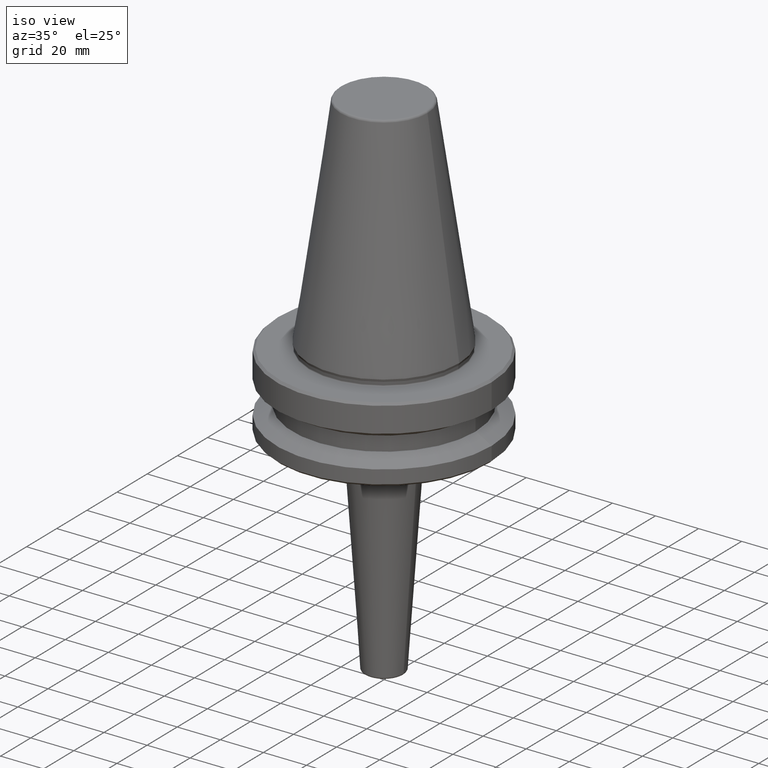
[diagram: clean part render]
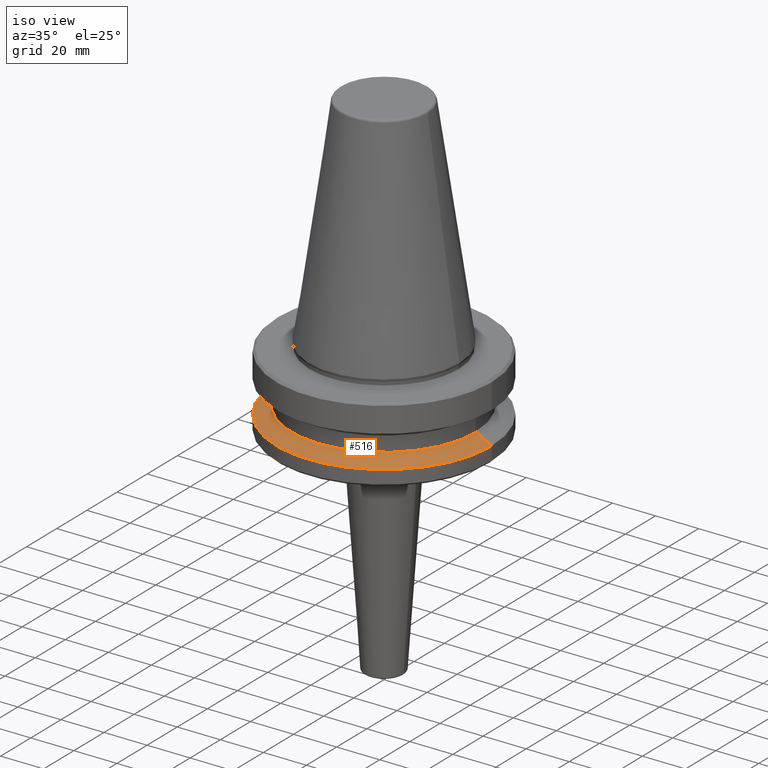
[diagram: same view with one face highlighted and labeled with its STEP entity id]
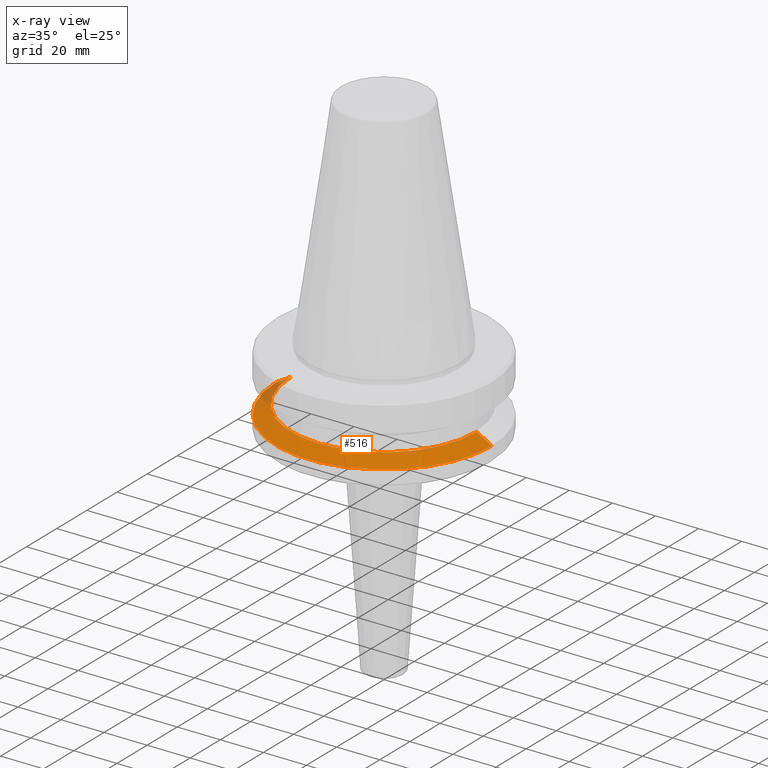
[diagram: x-ray of the same camera — body ghosted, the highlighted face saturated]
A machine part, iso view. The second image highlights one B-rep face of the part: STEP entity #516.
The next image is the same camera in x-ray: the body ghosted, the highlighted face saturated — about 5% of this face is hidden behind the body in this view.
In plain terms, the highlighted conical surface has half-angle 60 deg.
Its self-contained STEP definition (entity closure, byte-faithful):
#6 = CARTESIAN_POINT ( 'NONE',  ( 0.0000000000000000000, 0.0000000000000000000, -30.69977999677324500 ) ) ;
#43 = CARTESIAN_POINT ( 'NONE',  ( 50.00000000000000000, 0.0000000000000000000, -30.69977999677324500 ) ) ;
#90 = EDGE_CURVE ( 'NONE', #1002, #963, #771, .T. ) ;
#131 = DIRECTION ( 'NONE',  ( -1.000000000000000000, 0.0000000000000000000, 0.0000000000000000000 ) ) ;
#190 = AXIS2_PLACEMENT_3D ( 'NONE', #6, #740, #131 ) ;
#243 = CARTESIAN_POINT ( 'NONE',  ( 50.00000000000000000, 6.123233995736766100E-015, -30.69977999677324500 ) ) ;
#287 = CARTESIAN_POINT ( 'NONE',  ( -50.00000000000000000, 0.0000000000000000000, -30.69977999677324500 ) ) ;
#321 = ORIENTED_EDGE ( 'NONE', *, *, #762, .T. ) ;
#360 = CARTESIAN_POINT ( 'NONE',  ( -50.00000000000000000, 6.123233995736766100E-015, -30.69977999677324500 ) ) ;
#364 = CARTESIAN_POINT ( 'NONE',  ( 0.0000000000000000000, 0.0000000000000000000, -30.69977999677324500 ) ) ;
#367 = DIRECTION ( 'NONE',  ( -0.8660254037844383700, 0.0000000000000000000, -0.5000000000000004400 ) ) ;
#371 = VERTEX_POINT ( 'NONE', #43 ) ;
#375 = AXIS2_PLACEMENT_3D ( 'NONE', #364, #913, #435 ) ;
#380 = AXIS2_PLACEMENT_3D ( 'NONE', #503, #508, #509 ) ;
#411 = VECTOR ( 'NONE', #367, 1000.000000000000000 ) ;
#435 = DIRECTION ( 'NONE',  ( 1.000000000000000000, 0.0000000000000000000, 0.0000000000000000000 ) ) ;
#466 = VERTEX_POINT ( 'NONE', #360 ) ;
#502 = VECTOR ( 'NONE', #723, 1000.000000000000000 ) ;
#503 = CARTESIAN_POINT ( 'NONE',  ( 0.0000000000000000000, 0.0000000000000000000, -26.69999999999998900 ) ) ;
#508 = DIRECTION ( 'NONE',  ( -0.0000000000000000000, -0.0000000000000000000, 1.000000000000000000 ) ) ;
#509 = DIRECTION ( 'NONE',  ( 1.000000000000000000, 0.0000000000000000000, 0.0000000000000000000 ) ) ;
#516 = ADVANCED_FACE ( 'NONE', ( #761 ), #908, .T. ) ;
#560 = CIRCLE ( 'NONE', #375, 50.00000000000000000 ) ;
#721 = EDGE_CURVE ( 'NONE', #466, #371, #560, .T. ) ;
#723 = DIRECTION ( 'NONE',  ( 0.8660254037844383700, 1.060575238724906500E-016, -0.5000000000000004400 ) ) ;
#740 = DIRECTION ( 'NONE',  ( 0.0000000000000000000, 0.0000000000000000000, -1.000000000000000000 ) ) ;
#761 = FACE_OUTER_BOUND ( 'NONE', #830, .T. ) ;
#762 = EDGE_CURVE ( 'NONE', #1002, #466, #886, .T. ) ;
#771 = CIRCLE ( 'NONE', #380, 43.07217782649105000 ) ;
#790 = ORIENTED_EDGE ( 'NONE', *, *, #949, .F. ) ;
#830 = EDGE_LOOP ( 'NONE', ( #790, #943, #321, #855 ) ) ;
#855 = ORIENTED_EDGE ( 'NONE', *, *, #721, .T. ) ;
#870 = CARTESIAN_POINT ( 'NONE',  ( 43.07217782649105000, 5.699027233244276800E-015, -26.69999999999998900 ) ) ;
#871 = CARTESIAN_POINT ( 'NONE',  ( -43.07217782649105000, 0.0000000000000000000, -26.69999999999998900 ) ) ;
#886 = LINE ( 'NONE', #287, #411 ) ;
#908 = CONICAL_SURFACE ( 'NONE', #190, 50.00000000000000000, 1.047197551196597200 ) ;
#913 = DIRECTION ( 'NONE',  ( -0.0000000000000000000, -0.0000000000000000000, 1.000000000000000000 ) ) ;
#919 = LINE ( 'NONE', #243, #502 ) ;
#943 = ORIENTED_EDGE ( 'NONE', *, *, #90, .F. ) ;
#949 = EDGE_CURVE ( 'NONE', #963, #371, #919, .T. ) ;
#963 = VERTEX_POINT ( 'NONE', #870 ) ;
#1002 = VERTEX_POINT ( 'NONE', #871 ) ;